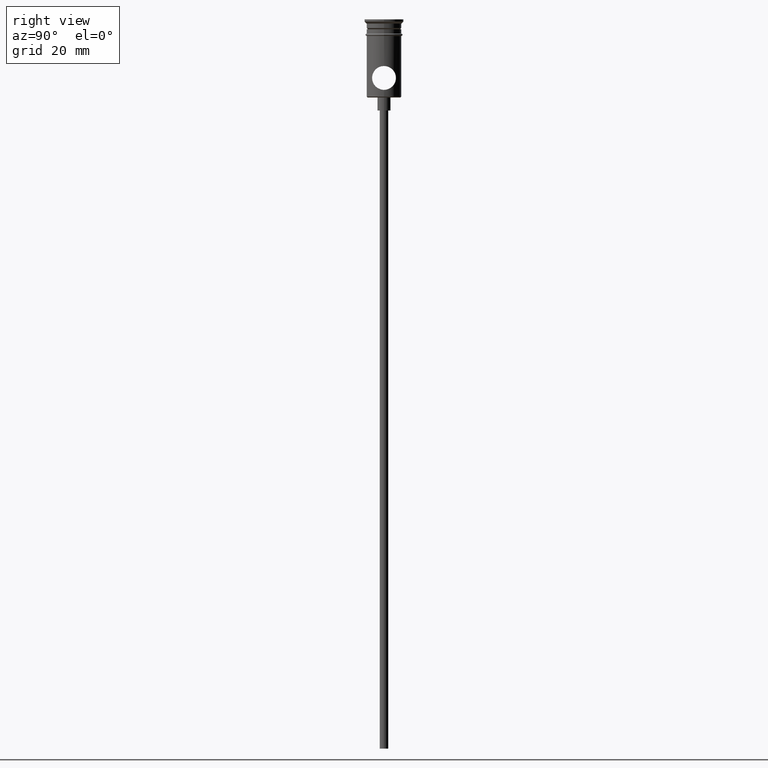
[diagram: clean part render]
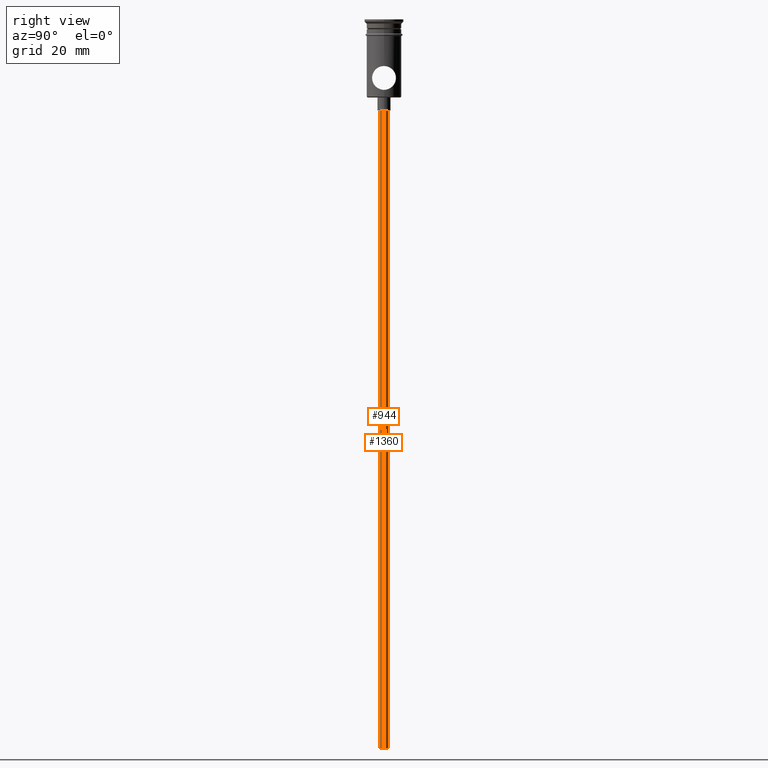
[diagram: same view with one multi-face feature highlighted, each face labeled with its STEP entity id]
A machine part, right view. The highlighted faces form ONE feature: a constant-radius fillet chain: 2 tangent blend faces with common blend radius 1 mm. The faces share edges in the B-rep.
Their STEP definitions:
[1] entity #1360 (Cylinder):
#1 = CARTESIAN_POINT ( 'NONE',  ( -0.9999999999999997780, 1.224646799147352961E-16, -20.99999999999999645 ) ) ;
#86 = AXIS2_PLACEMENT_3D ( 'NONE', #215, #1150, #416 ) ;
#147 = VERTEX_POINT ( 'NONE', #1 ) ;
#149 = CARTESIAN_POINT ( 'NONE',  ( 0.000000000000000000, 0.000000000000000000, -167.9999999999999716 ) ) ;
#194 = VERTEX_POINT ( 'NONE', #687 ) ;
#199 = EDGE_CURVE ( 'NONE', #194, #1230, #723, .T. ) ;
#215 = CARTESIAN_POINT ( 'NONE',  ( 0.000000000000000000, 0.000000000000000000, -20.99999999999999645 ) ) ;
#245 = ORIENTED_EDGE ( 'NONE', *, *, #1015, .F. ) ;
#246 = EDGE_CURVE ( 'NONE', #147, #784, #369, .T. ) ;
#364 = ORIENTED_EDGE ( 'NONE', *, *, #199, .F. ) ;
#369 = CIRCLE ( 'NONE', #86, 0.9999999999999997780 ) ;
#416 = DIRECTION ( 'NONE',  ( -1.000000000000000000, 0.000000000000000000, 0.000000000000000000 ) ) ;
#471 = DIRECTION ( 'NONE',  ( -0.000000000000000000, -0.000000000000000000, 1.000000000000000000 ) ) ;
#477 = DIRECTION ( 'NONE',  ( 1.000000000000000000, 0.000000000000000000, 0.000000000000000000 ) ) ;
#501 = LINE ( 'NONE', #702, #726 ) ;
#508 = DIRECTION ( 'NONE',  ( -1.000000000000000000, 0.000000000000000000, 0.000000000000000000 ) ) ;
#559 = CARTESIAN_POINT ( 'NONE',  ( 0.9999999999999997780, 0.000000000000000000, -20.99999999999999645 ) ) ;
#645 = DIRECTION ( 'NONE',  ( 0.000000000000000000, 0.000000000000000000, -1.000000000000000000 ) ) ;
#687 = CARTESIAN_POINT ( 'NONE',  ( -0.9999999999999997780, 1.224646799147352961E-16, -167.9999999999999716 ) ) ;
#699 = CARTESIAN_POINT ( 'NONE',  ( 0.9999999999999997780, 0.000000000000000000, -167.9999999999999716 ) ) ;
#702 = CARTESIAN_POINT ( 'NONE',  ( -0.9999999999999997780, 1.224646799147352961E-16, -167.9999999999999716 ) ) ;
#703 = FACE_OUTER_BOUND ( 'NONE', #989, .T. ) ;
#723 = CIRCLE ( 'NONE', #828, 0.9999999999999997780 ) ;
#726 = VECTOR ( 'NONE', #833, 1000.000000000000000 ) ;
#746 = ORIENTED_EDGE ( 'NONE', *, *, #980, .T. ) ;
#784 = VERTEX_POINT ( 'NONE', #559 ) ;
#828 = AXIS2_PLACEMENT_3D ( 'NONE', #843, #645, #508 ) ;
#833 = DIRECTION ( 'NONE',  ( -0.000000000000000000, -0.000000000000000000, 1.000000000000000000 ) ) ;
#843 = CARTESIAN_POINT ( 'NONE',  ( 0.000000000000000000, 0.000000000000000000, -167.9999999999999716 ) ) ;
#910 = LINE ( 'NONE', #699, #1203 ) ;
#914 = AXIS2_PLACEMENT_3D ( 'NONE', #149, #471, #477 ) ;
#980 = EDGE_CURVE ( 'NONE', #194, #147, #501, .T. ) ;
#989 = EDGE_LOOP ( 'NONE', ( #364, #746, #1379, #245 ) ) ;
#1015 = EDGE_CURVE ( 'NONE', #1230, #784, #910, .T. ) ;
#1115 = CYLINDRICAL_SURFACE ( 'NONE', #914, 0.9999999999999997780 ) ;
#1130 = DIRECTION ( 'NONE',  ( -0.000000000000000000, -0.000000000000000000, 1.000000000000000000 ) ) ;
#1150 = DIRECTION ( 'NONE',  ( 0.000000000000000000, 0.000000000000000000, -1.000000000000000000 ) ) ;
#1203 = VECTOR ( 'NONE', #1130, 1000.000000000000000 ) ;
#1230 = VERTEX_POINT ( 'NONE', #1291 ) ;
#1291 = CARTESIAN_POINT ( 'NONE',  ( 0.9999999999999997780, 0.000000000000000000, -167.9999999999999716 ) ) ;
#1360 = ADVANCED_FACE ( 'NONE', ( #703 ), #1115, .T. ) ;
#1379 = ORIENTED_EDGE ( 'NONE', *, *, #246, .T. ) ;
[2] entity #944 (Cylinder):
#1 = CARTESIAN_POINT ( 'NONE',  ( -0.9999999999999997780, 1.224646799147352961E-16, -20.99999999999999645 ) ) ;
#84 = DIRECTION ( 'NONE',  ( -0.000000000000000000, -0.000000000000000000, 1.000000000000000000 ) ) ;
#93 = ORIENTED_EDGE ( 'NONE', *, *, #980, .F. ) ;
#113 = AXIS2_PLACEMENT_3D ( 'NONE', #1284, #84, #1045 ) ;
#147 = VERTEX_POINT ( 'NONE', #1 ) ;
#194 = VERTEX_POINT ( 'NONE', #687 ) ;
#258 = CIRCLE ( 'NONE', #1179, 0.9999999999999997780 ) ;
#378 = DIRECTION ( 'NONE',  ( -1.000000000000000000, 0.000000000000000000, 0.000000000000000000 ) ) ;
#464 = CARTESIAN_POINT ( 'NONE',  ( 0.000000000000000000, 0.000000000000000000, -20.99999999999999645 ) ) ;
#501 = LINE ( 'NONE', #702, #726 ) ;
#549 = CARTESIAN_POINT ( 'NONE',  ( 0.000000000000000000, 0.000000000000000000, -167.9999999999999716 ) ) ;
#559 = CARTESIAN_POINT ( 'NONE',  ( 0.9999999999999997780, 0.000000000000000000, -20.99999999999999645 ) ) ;
#600 = CYLINDRICAL_SURFACE ( 'NONE', #113, 0.9999999999999997780 ) ;
#633 = ORIENTED_EDGE ( 'NONE', *, *, #1348, .T. ) ;
#687 = CARTESIAN_POINT ( 'NONE',  ( -0.9999999999999997780, 1.224646799147352961E-16, -167.9999999999999716 ) ) ;
#699 = CARTESIAN_POINT ( 'NONE',  ( 0.9999999999999997780, 0.000000000000000000, -167.9999999999999716 ) ) ;
#702 = CARTESIAN_POINT ( 'NONE',  ( -0.9999999999999997780, 1.224646799147352961E-16, -167.9999999999999716 ) ) ;
#711 = FACE_OUTER_BOUND ( 'NONE', #881, .T. ) ;
#726 = VECTOR ( 'NONE', #833, 1000.000000000000000 ) ;
#770 = DIRECTION ( 'NONE',  ( -1.000000000000000000, 0.000000000000000000, 0.000000000000000000 ) ) ;
#784 = VERTEX_POINT ( 'NONE', #559 ) ;
#833 = DIRECTION ( 'NONE',  ( -0.000000000000000000, -0.000000000000000000, 1.000000000000000000 ) ) ;
#872 = EDGE_CURVE ( 'NONE', #1230, #194, #258, .T. ) ;
#881 = EDGE_LOOP ( 'NONE', ( #93, #1287, #1390, #633 ) ) ;
#903 = DIRECTION ( 'NONE',  ( 0.000000000000000000, 0.000000000000000000, -1.000000000000000000 ) ) ;
#910 = LINE ( 'NONE', #699, #1203 ) ;
#944 = ADVANCED_FACE ( 'NONE', ( #711 ), #600, .T. ) ;
#980 = EDGE_CURVE ( 'NONE', #194, #147, #501, .T. ) ;
#1015 = EDGE_CURVE ( 'NONE', #1230, #784, #910, .T. ) ;
#1045 = DIRECTION ( 'NONE',  ( 1.000000000000000000, 0.000000000000000000, 0.000000000000000000 ) ) ;
#1130 = DIRECTION ( 'NONE',  ( -0.000000000000000000, -0.000000000000000000, 1.000000000000000000 ) ) ;
#1179 = AXIS2_PLACEMENT_3D ( 'NONE', #549, #1408, #770 ) ;
#1203 = VECTOR ( 'NONE', #1130, 1000.000000000000000 ) ;
#1205 = AXIS2_PLACEMENT_3D ( 'NONE', #464, #903, #378 ) ;
#1230 = VERTEX_POINT ( 'NONE', #1291 ) ;
#1276 = CIRCLE ( 'NONE', #1205, 0.9999999999999997780 ) ;
#1284 = CARTESIAN_POINT ( 'NONE',  ( 0.000000000000000000, 0.000000000000000000, -167.9999999999999716 ) ) ;
#1287 = ORIENTED_EDGE ( 'NONE', *, *, #872, .F. ) ;
#1291 = CARTESIAN_POINT ( 'NONE',  ( 0.9999999999999997780, 0.000000000000000000, -167.9999999999999716 ) ) ;
#1348 = EDGE_CURVE ( 'NONE', #784, #147, #1276, .T. ) ;
#1390 = ORIENTED_EDGE ( 'NONE', *, *, #1015, .T. ) ;
#1408 = DIRECTION ( 'NONE',  ( 0.000000000000000000, 0.000000000000000000, -1.000000000000000000 ) ) ;